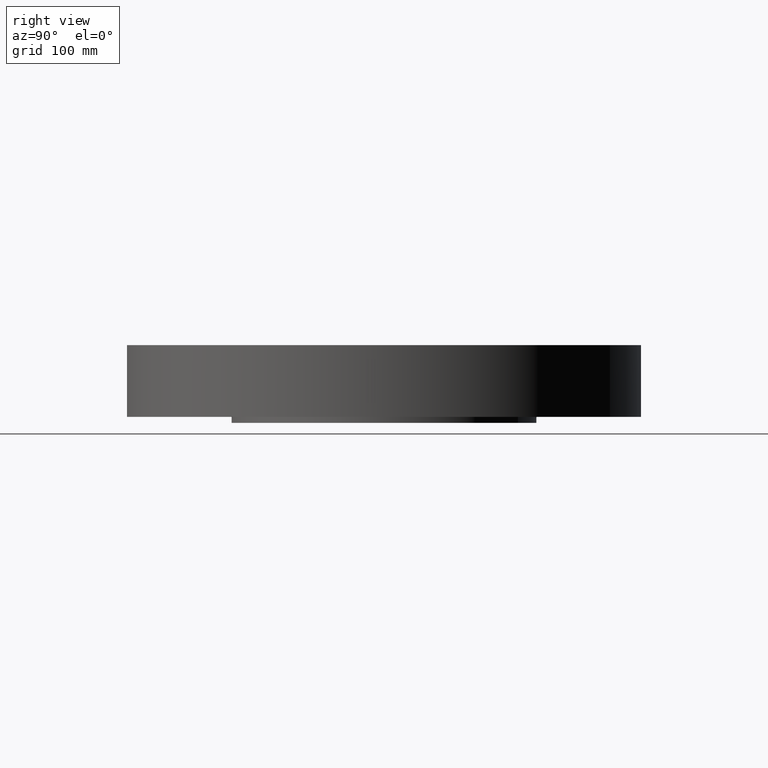
[diagram: clean part render]
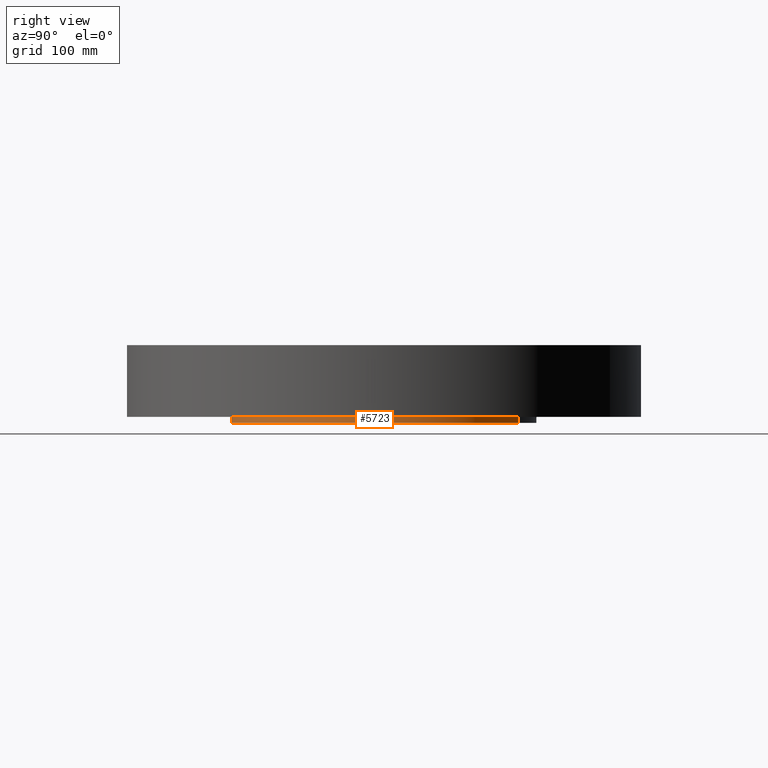
[diagram: same view with one face highlighted and labeled with its STEP entity id]
A machine part, right view. The second image highlights one B-rep face of the part: STEP entity #5723.
In plain terms, the highlighted cylindrical surface (partial cylindrical patch) has radius 161.925 mm, axis along (0, 0, -1).
Its self-contained STEP definition (entity closure, byte-faithful):
#4913=AXIS2_PLACEMENT_3D('Circle Axis2P3D',#4911,#4912,$) ;
#5696=AXIS2_PLACEMENT_3D('Cylinder Axis2P3D',#5693,#5694,#5695) ;
#5700=AXIS2_PLACEMENT_3D('Circle Axis2P3D',#5698,#5699,$) ;
#4911=CARTESIAN_POINT('Axis2P3D Location',(0.,0.,0.)) ;
#4915=CARTESIAN_POINT('Vertex',(3.05633780861,5.59458883207,-3.02120533315E-014)) ;
#4917=CARTESIAN_POINT('Vertex',(-3.05633780861,-5.59458883207,-3.02120533315E-014)) ;
#5693=CARTESIAN_POINT('Axis2P3D Location',(0.,0.,1.37500000001)) ;
#5698=CARTESIAN_POINT('Axis2P3D Location',(0.,0.,-0.250000000001)) ;
#5702=CARTESIAN_POINT('Vertex',(3.05633780861,5.59458883207,-0.250000000001)) ;
#5704=CARTESIAN_POINT('Vertex',(-3.05633780861,-5.59458883207,-0.250000000001)) ;
#5707=CARTESIAN_POINT('Line Origine',(3.05633780861,5.59458883207,-0.125000000001)) ;
#5712=CARTESIAN_POINT('Line Origine',(-3.05633780861,-5.59458883207,-0.125000000001)) ;
#4912=DIRECTION('Axis2P3D Direction',(0.,0.,-0.0393700787402)) ;
#5694=DIRECTION('Axis2P3D Direction',(0.,0.,-0.0393700787402)) ;
#5695=DIRECTION('Axis2P3D XDirection',(-0.0188750212049,-0.0345504945626,0.)) ;
#5699=DIRECTION('Axis2P3D Direction',(0.,0.,-0.0393700787402)) ;
#5708=DIRECTION('Vector Direction',(0.,0.,-0.0393700787402)) ;
#5713=DIRECTION('Vector Direction',(0.,0.,-0.0393700787402)) ;
#5709=VECTOR('Line Direction',#5708,0.0393700787402) ;
#5714=VECTOR('Line Direction',#5713,0.0393700787402) ;
#5718=ORIENTED_EDGE('',*,*,#5706,.F.) ;
#5719=ORIENTED_EDGE('',*,*,#5711,.T.) ;
#5720=ORIENTED_EDGE('',*,*,#4919,.T.) ;
#5721=ORIENTED_EDGE('',*,*,#5716,.F.) ;
#5723=ADVANCED_FACE('PartBody',(#5722),#5697,.T.) ;
#4914=CIRCLE('generated circle',#4913,6.37500000003) ;
#5701=CIRCLE('generated circle',#5700,6.37500000003) ;
#5697=CYLINDRICAL_SURFACE('generated cylinder',#5696,6.37500000003) ;
#4919=EDGE_CURVE('',#4916,#4918,#4914,.T.) ;
#5706=EDGE_CURVE('',#5703,#5705,#5701,.T.) ;
#5711=EDGE_CURVE('',#5703,#4916,#5710,.F.) ;
#5716=EDGE_CURVE('',#5705,#4918,#5715,.F.) ;
#5717=EDGE_LOOP('',(#5718,#5719,#5720,#5721)) ;
#5722=FACE_OUTER_BOUND('',#5717,.T.) ;
#5710=LINE('Line',#5707,#5709) ;
#5715=LINE('Line',#5712,#5714) ;
#4916=VERTEX_POINT('',#4915) ;
#4918=VERTEX_POINT('',#4917) ;
#5703=VERTEX_POINT('',#5702) ;
#5705=VERTEX_POINT('',#5704) ;